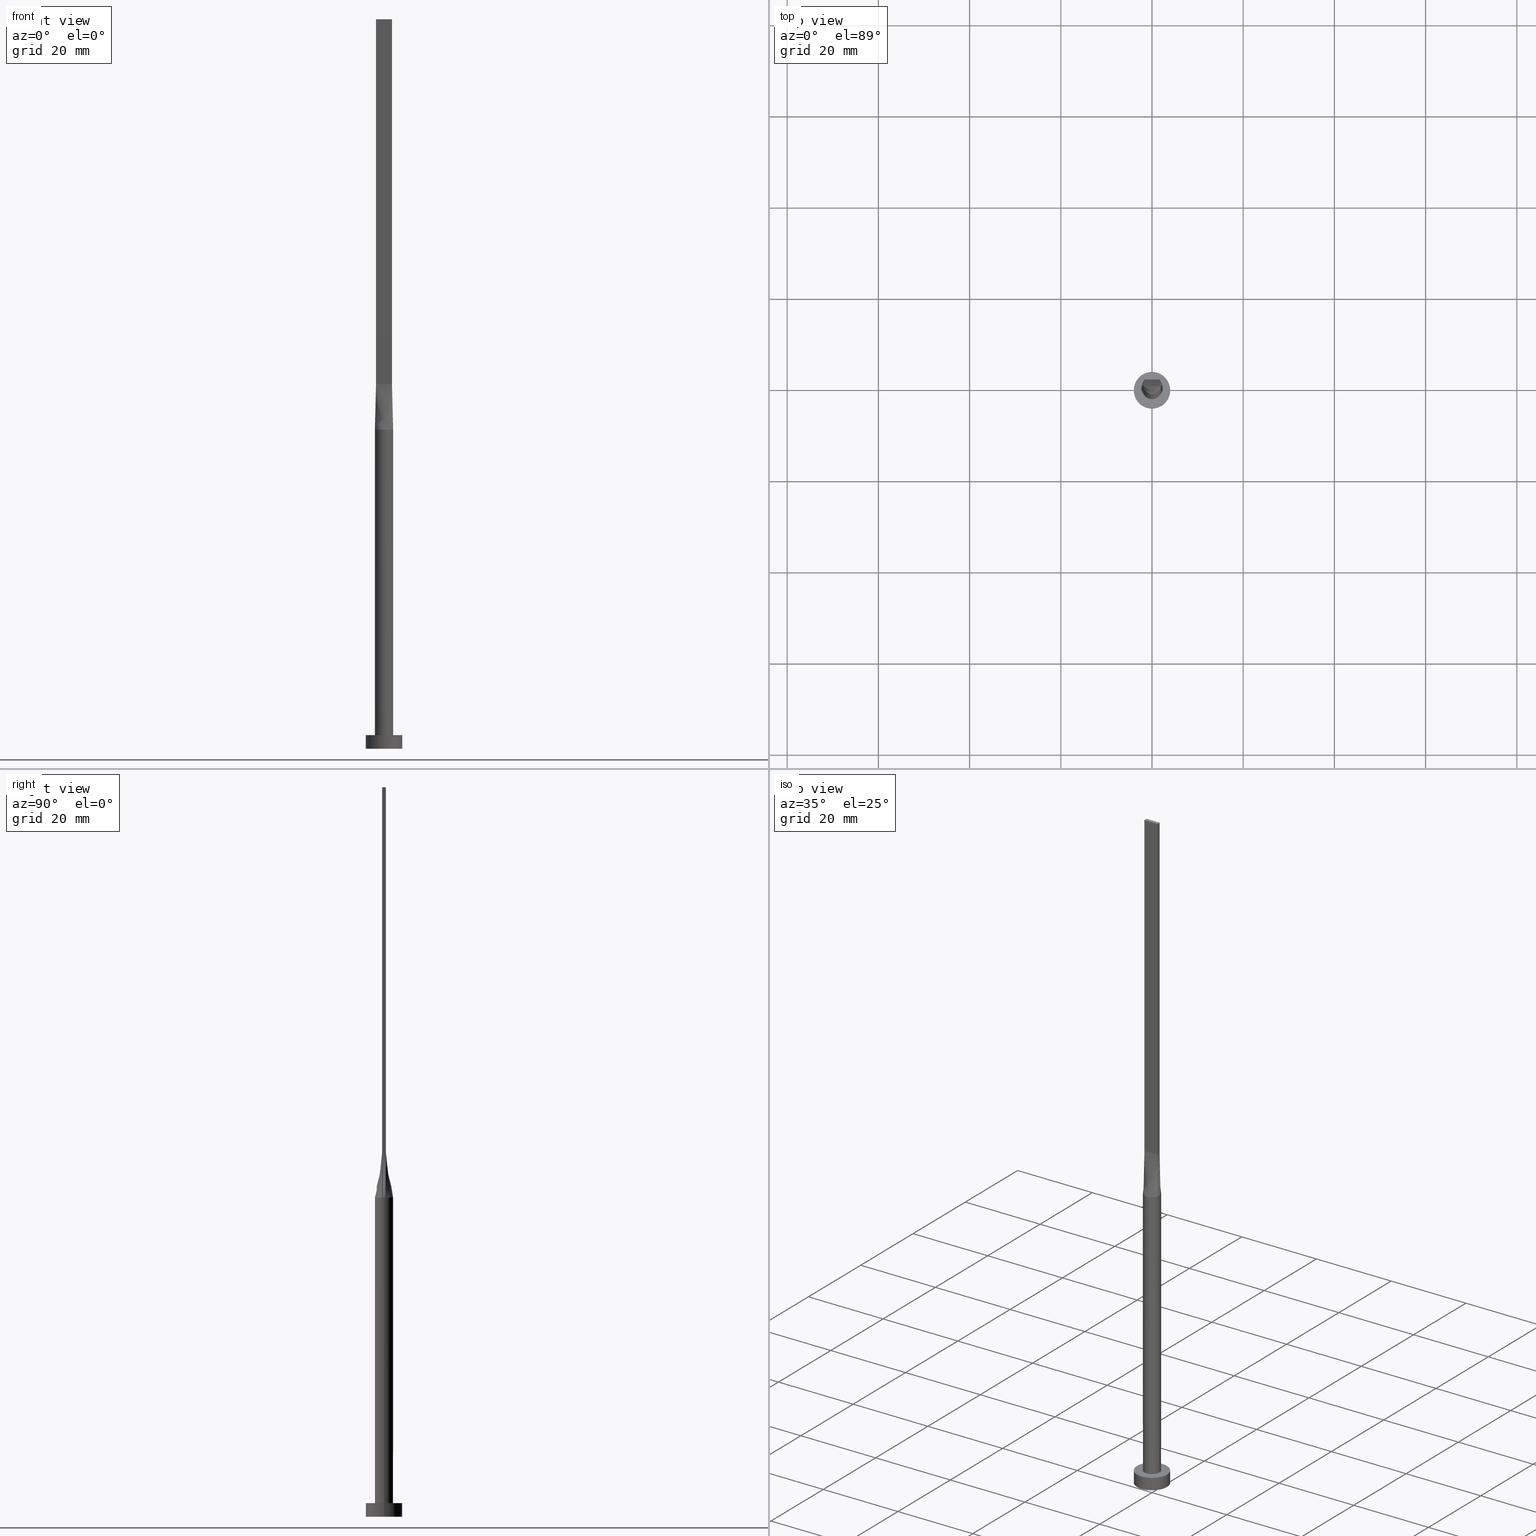
[diagram: canonical four-view strip — front | top / right | iso, engineering-drawing reading convention]
A machine part, canonical four-view strip (front | top / right | iso — engineering-drawing reading convention). The complete STEP part file that produces these views, byte-faithful:
ISO-10303-21;
HEADER;
FILE_DESCRIPTION (( 'STEP AP203' ),
    '1' );
FILE_NAME ('9717.STEP',
    '2026-02-12T09:06:50',
    ( '' ),
    ( '' ),
    'SwSTEP 2.0',
    'SolidWorks 2019',
    '' );
FILE_SCHEMA (( 'CONFIG_CONTROL_DESIGN' ));
ENDSEC;

DATA;
#1 = VECTOR ( 'NONE', #536, 1000.000000000000000 ) ;
#2 = DIRECTION ( 'NONE',  ( 1.000000000000000000, 0.000000000000000000, 0.000000000000000000 ) ) ;
#3 = ORIENTED_EDGE ( 'NONE', *, *, #293, .F. ) ;
#4 = CARTESIAN_POINT ( 'NONE',  ( 0.000000000000000000, 0.000000000000000000, 3.000000000000000000 ) ) ;
#5 = ADVANCED_FACE ( 'NONE', ( #320 ), #195, .T. ) ;
#6 = EDGE_CURVE ( 'NONE', #53, #36, #255, .T. ) ;
#7 = LINE ( 'NONE', #438, #499 ) ;
#8 = VECTOR ( 'NONE', #379, 1000.000000000000000 ) ;
#9 = LOCAL_TIME ( 10, 6, 50.00000000000000000, #35 ) ;
#10 = CARTESIAN_POINT ( 'NONE',  ( 1.166666666666665853, -0.3999999999999997446, 79.99999999999998579 ) ) ;
#11 = LINE ( 'NONE', #559, #203 ) ;
#12 = EDGE_CURVE ( 'NONE', #16, #36, #151, .T. ) ;
#13 = DIRECTION ( 'NONE',  ( -0.000000000000000000, -0.000000000000000000, -1.000000000000000000 ) ) ;
#14 = PLANE ( 'NONE',  #67 ) ;
#15 = AXIS2_PLACEMENT_3D ( 'NONE', #366, #91, #549 ) ;
#16 = VERTEX_POINT ( 'NONE', #97 ) ;
#17 = ORIENTED_EDGE ( 'NONE', *, *, #214, .F. ) ;
#18 = CARTESIAN_POINT ( 'NONE',  ( 0.5307032259479425029, 1.945168061822314165, 70.00000000000001421 ) ) ;
#19 = CARTESIAN_POINT ( 'NONE',  ( 0.1458333333333323989, 0.4000000000000004108, 80.00000000000000000 ) ) ;
#20 = DIRECTION ( 'NONE',  ( 0.000000000000000000, 1.000000000000000000, 0.000000000000000000 ) ) ;
#21 = CIRCLE ( 'NONE', #349, 2.000000000000000000 ) ;
#22 = LINE ( 'NONE', #464, #99 ) ;
#23 = VERTEX_POINT ( 'NONE', #363 ) ;
#24 = DIRECTION ( 'NONE',  ( 0.000000000000000000, 0.000000000000000000, 1.000000000000000000 ) ) ;
#25 = AXIS2_PLACEMENT_3D ( 'NONE', #4, #93, #181 ) ;
#26 = DIRECTION ( 'NONE',  ( -1.000000000000000000, -2.710505431213761085E-16, 0.000000000000000000 ) ) ;
#27 = PERSON_AND_ORGANIZATION_ROLE ( 'design_owner' ) ;
#28 = CARTESIAN_POINT ( 'NONE',  ( 1.982817607920046798, 0.3008345008579150770, 70.00000000000000000 ) ) ;
#29 = UNCERTAINTY_MEASURE_WITH_UNIT (LENGTH_MEASURE( 1.000000000000000082E-05 ), #194, 'distance_accuracy_value', 'NONE');
#30 = ADVANCED_FACE ( 'NONE', ( #491 ), #547, .F. ) ;
#31 = APPROVAL_DATE_TIME ( #259, #66 ) ;
#32 = ORIENTED_EDGE ( 'NONE', *, *, #110, .F. ) ;
#33 = DIRECTION ( 'NONE',  ( -0.01996751149463111413, 0.004564002627344219271, 0.9997902121768992290 ) ) ;
#34 = B_SPLINE_SURFACE_WITH_KNOTS ( 'NONE', 3, 1, ( 
 ( #305, #474 ),
 ( #159, #373 ),
 ( #155, #56 ),
 ( #238, #105 ),
 ( #560, #109 ),
 ( #412, #564 ),
 ( #198, #61 ),
 ( #18, #287 ),
 ( #461, #19 ),
 ( #552, #113 ),
 ( #334, #200 ),
 ( #377, #453 ),
 ( #511, #374 ),
 ( #457, #326 ),
 ( #58, #410 ),
 ( #288, #333 ),
 ( #458, #370 ),
 ( #283, #243 ) ),
 .UNSPECIFIED., .F., .F., .F.,
 ( 4, 2, 2, 2, 2, 2, 2, 2, 4 ),
 ( 2, 2 ),
 ( 0.000000000000000000, 0.1250000000000000000, 0.2500000000000000000, 0.3750000000000000000, 0.5000000000000000000, 0.6250000000000000000, 0.7500000000000000000, 0.8750000000000000000, 1.000000000000000000 ),
 ( 0.000000000000000000, 1.000000000000000000 ),
 .UNSPECIFIED. ) ;
#35 = COORDINATED_UNIVERSAL_TIME_OFFSET ( 1, 0, .AHEAD. ) ;
#36 = VERTEX_POINT ( 'NONE', #535 ) ;
#37 = CARTESIAN_POINT ( 'NONE',  ( -1.999367905308203630, -0.1504172504289575940, 70.00000000000000000 ) ) ;
#38 = EDGE_LOOP ( 'NONE', ( #343, #446, #391, #487 ) ) ;
#39 = DIRECTION ( 'NONE',  ( -1.000000000000000000, 0.000000000000000000, 0.000000000000000000 ) ) ;
#40 = EDGE_CURVE ( 'NONE', #183, #131, #268, .T. ) ;
#41 = FACE_OUTER_BOUND ( 'NONE', #572, .T. ) ;
#42 = CARTESIAN_POINT ( 'NONE',  ( -1.849858506571867123, 0.4228248015021412454, 75.00000000000001421 ) ) ;
#43 = CARTESIAN_POINT ( 'NONE',  ( 1.542259513637949109, -1.293837904363074331, 70.00000000000001421 ) ) ;
#44 = CARTESIAN_POINT ( 'NONE',  ( 1.209404336647714073, 1.609323485403446830, 70.00000000000001421 ) ) ;
#45 = CARTESIAN_POINT ( 'NONE',  ( 0.000000000000000000, 0.000000000000000000, 0.000000000000000000 ) ) ;
#46 = ORIENTED_EDGE ( 'NONE', *, *, #455, .F. ) ;
#47 = CARTESIAN_POINT ( 'NONE',  ( -1.749999999999999778, 0.4000000000000003553, 160.0000000000000000 ) ) ;
#48 = CARTESIAN_POINT ( 'NONE',  ( 1.669156890509896574, -1.119033439449083733, 70.00000000000001421 ) ) ;
#49 = CARTESIAN_POINT ( 'NONE',  ( 1.949877516600953875, 0.4456865912299994847, 70.00000000000000000 ) ) ;
#50 = DIRECTION ( 'NONE',  ( 0.000000000000000000, 0.000000000000000000, 1.000000000000000000 ) ) ;
#51 = DIRECTION ( 'NONE',  ( -2.710505431213761085E-16, 1.000000000000000000, 0.000000000000000000 ) ) ;
#52 = DIRECTION ( 'NONE',  ( -0.000000000000000000, -0.000000000000000000, -1.000000000000000000 ) ) ;
#53 = VERTEX_POINT ( 'NONE', #566 ) ;
#54 = AXIS2_PLACEMENT_3D ( 'NONE', #133, #229, #436 ) ;
#55 = EDGE_CURVE ( 'NONE', #550, #390, #409, .T. ) ;
#56 = CARTESIAN_POINT ( 'NONE',  ( 1.458333333333332371, 0.4000000000000003553, 79.99999999999998579 ) ) ;
#57 = CARTESIAN_POINT ( 'NONE',  ( -1.669156890509896796, 1.119033439449084399, 70.00000000000001421 ) ) ;
#58 = CARTESIAN_POINT ( 'NONE',  ( -1.669156890509896796, 1.119033439449084399, 70.00000000000001421 ) ) ;
#59 =( NAMED_UNIT ( * ) SI_UNIT ( $, .STERADIAN. ) SOLID_ANGLE_UNIT ( ) );
#60 = APPROVAL_STATUS ( 'not_yet_approved' ) ;
#61 = CARTESIAN_POINT ( 'NONE',  ( 0.5833333333333323711, 0.4000000000000004108, 79.99999999999998579 ) ) ;
#62 = DIRECTION ( 'NONE',  ( 1.000000000000000000, 0.000000000000000000, 0.000000000000000000 ) ) ;
#63 = ORIENTED_EDGE ( 'NONE', *, *, #116, .T. ) ;
#64 = ORIENTED_EDGE ( 'NONE', *, *, #153, .T. ) ;
#65 = CARTESIAN_POINT ( 'NONE',  ( -4.000000000000000000, 0.000000000000000000, 0.000000000000000000 ) ) ;
#66 = APPROVAL ( #251, 'NEUR�EN�' ) ;
#67 = AXIS2_PLACEMENT_3D ( 'NONE', #415, #20, #115 ) ;
#68 = DIRECTION ( 'NONE',  ( 0.000000000000000000, 0.000000000000000000, 1.000000000000000000 ) ) ;
#69 = ORIENTED_EDGE ( 'NONE', *, *, #6, .T. ) ;
#70 = EDGE_CURVE ( 'NONE', #505, #120, #495, .T. ) ;
#71 = CARTESIAN_POINT ( 'NONE',  ( -1.458333333333333703, -0.3999999999999996891, 79.99999999999998579 ) ) ;
#72 = ORIENTED_EDGE ( 'NONE', *, *, #378, .F. ) ;
#73 = CARTESIAN_POINT ( 'NONE',  ( -1.669156890509896796, -1.119033439449083733, 70.00000000000000000 ) ) ;
#74 = APPROVAL_DATE_TIME ( #126, #134 ) ;
#75 = EDGE_LOOP ( 'NONE', ( #420, #230, #69, #544, #271, #176 ) ) ;
#76 = EDGE_LOOP ( 'NONE', ( #63, #452, #307, #444 ) ) ;
#77 = CARTESIAN_POINT ( 'NONE',  ( 0.000000000000000000, 0.000000000000000000, 160.0000000000000000 ) ) ;
#78 = APPROVAL_PERSON_ORGANIZATION ( #389, #330, #191 ) ;
#79 = EDGE_CURVE ( 'NONE', #525, #95, #281, .T. ) ;
#80 = LINE ( 'NONE', #42, #325 ) ;
#81 = CALENDAR_DATE ( 2026, 12, 2 ) ;
#82 = CARTESIAN_POINT ( 'NONE',  ( -1.982817607920047243, -0.3008345008579154101, 70.00000000000000000 ) ) ;
#83 = AXIS2_PLACEMENT_3D ( 'NONE', #252, #26, #87 ) ;
#84 = ORIENTED_EDGE ( 'NONE', *, *, #441, .F. ) ;
#85 = CARTESIAN_POINT ( 'NONE',  ( 1.542259513637948443, 1.293837904363074998, 70.00000000000000000 ) ) ;
#86 = CARTESIAN_POINT ( 'NONE',  ( 0.000000000000000000, 0.000000000000000000, 3.000000000000000000 ) ) ;
#87 = DIRECTION ( 'NONE',  ( 2.710505431213761085E-16, -1.000000000000000000, 0.000000000000000000 ) ) ;
#88 = DIRECTION ( 'NONE',  ( 0.000000000000000000, 0.000000000000000000, 1.000000000000000000 ) ) ;
#89 = DIRECTION ( 'NONE',  ( 1.000000000000000000, 0.000000000000000000, -0.000000000000000000 ) ) ;
#90 = VERTEX_POINT ( 'NONE', #292 ) ;
#91 = DIRECTION ( 'NONE',  ( 0.000000000000000000, 0.000000000000000000, 1.000000000000000000 ) ) ;
#92 = ORIENTED_EDGE ( 'NONE', *, *, #114, .T. ) ;
#93 = DIRECTION ( 'NONE',  ( 0.000000000000000000, 0.000000000000000000, 1.000000000000000000 ) ) ;
#94 = EDGE_CURVE ( 'NONE', #297, #316, #21, .T. ) ;
#95 = VERTEX_POINT ( 'NONE', #507 ) ;
#96 = CARTESIAN_POINT ( 'NONE',  ( 1.020833333333332371, -0.3999999999999997446, 79.99999999999998579 ) ) ;
#97 = CARTESIAN_POINT ( 'NONE',  ( -1.999683952654101704, -4.787247324473225831E-16, 70.00000000000000000 ) ) ;
#98 = DIRECTION ( 'NONE',  ( -0.000000000000000000, -0.000000000000000000, -1.000000000000000000 ) ) ;
#99 = VECTOR ( 'NONE', #247, 1000.000000000000000 ) ;
#100 = EDGE_CURVE ( 'NONE', #173, #321, #22, .T. ) ;
#101 = CIRCLE ( 'NONE', #541, 2.000000000000000000 ) ;
#102 = CARTESIAN_POINT ( 'NONE',  ( 0.000000000000000000, 0.000000000000000000, 70.00000000000000000 ) ) ;
#103 = ORIENTED_EDGE ( 'NONE', *, *, #6, .F. ) ;
#104 = CIRCLE ( 'NONE', #520, 2.000000000000000000 ) ;
#105 = CARTESIAN_POINT ( 'NONE',  ( 1.166666666666665630, 0.4000000000000003553, 79.99999999999998579 ) ) ;
#106 = B_SPLINE_SURFACE_WITH_KNOTS ( 'NONE', 3, 1, ( 
 ( #448, #187 ),
 ( #207, #381 ),
 ( #382, #432 ),
 ( #37, #426 ),
 ( #82, #568 ),
 ( #519, #311 ) ),
 .UNSPECIFIED., .F., .F., .F.,
 ( 4, 2, 4 ),
 ( 2, 2 ),
 ( 0.000000000000000000, 0.5000000000000000000, 1.000000000000000000 ),
 ( 0.000000000000000000, 1.000000000000000000 ),
 .UNSPECIFIED. ) ;
#107 = CARTESIAN_POINT ( 'NONE',  ( -2.000000000000000000, 0.000000000000000000, 70.00000000000000000 ) ) ;
#108 = CALENDAR_DATE ( 2026, 12, 2 ) ;
#109 = CARTESIAN_POINT ( 'NONE',  ( 1.020833333333332371, 0.4000000000000004108, 79.99999999999998579 ) ) ;
#110 = EDGE_CURVE ( 'NONE', #525, #173, #423, .T. ) ;
#111 = CARTESIAN_POINT ( 'NONE',  ( 0.000000000000000000, 0.000000000000000000, 70.00000000000000000 ) ) ;
#112 = APPLICATION_CONTEXT ( 'configuration controlled 3d designs of mechanical parts and assemblies' ) ;
#113 = CARTESIAN_POINT ( 'NONE',  ( -0.1458333333333341753, 0.4000000000000004108, 79.99999999999998579 ) ) ;
#114 = EDGE_CURVE ( 'NONE', #321, #90, #404, .T. ) ;
#115 = DIRECTION ( 'NONE',  ( 0.000000000000000000, -0.000000000000000000, 1.000000000000000000 ) ) ;
#116 = EDGE_CURVE ( 'NONE', #505, #23, #516, .T. ) ;
#117 = CARTESIAN_POINT ( 'NONE',  ( -1.750000000000000000, -0.3999999999999996891, 80.00000000000000000 ) ) ;
#118 = AXIS2_PLACEMENT_3D ( 'NONE', #45, #245, #264 ) ;
#119 = COORDINATED_UNIVERSAL_TIME_OFFSET ( 1, 0, .AHEAD. ) ;
#120 = VERTEX_POINT ( 'NONE', #493 ) ;
#121 = CARTESIAN_POINT ( 'NONE',  ( -1.913513237607142425, -0.6040411209768705714, 70.00000000000001421 ) ) ;
#122 = PERSON_AND_ORGANIZATION ( #416, #148 ) ;
#123 = ORIENTED_EDGE ( 'NONE', *, *, #345, .T. ) ;
#124 = CARTESIAN_POINT ( 'NONE',  ( -0.5833333333333344806, -0.3999999999999997446, 79.99999999999998579 ) ) ;
#125 = FACE_OUTER_BOUND ( 'NONE', #76, .T. ) ;
#126 = DATE_AND_TIME ( #81, #397 ) ;
#127 = ORIENTED_EDGE ( 'NONE', *, *, #161, .T. ) ;
#128 = DIRECTION ( 'NONE',  ( 0.000000000000000000, 0.000000000000000000, 1.000000000000000000 ) ) ;
#129 = B_SPLINE_SURFACE_WITH_KNOTS ( 'NONE', 3, 1, ( 
 ( #210, #117 ),
 ( #121, #339 ),
 ( #257, #71 ),
 ( #73, #387 ),
 ( #260, #168 ),
 ( #573, #341 ),
 ( #522, #124 ),
 ( #144, #357 ),
 ( #352, #542 ),
 ( #142, #486 ),
 ( #534, #440 ),
 ( #234, #184 ),
 ( #398, #361 ),
 ( #43, #96 ),
 ( #48, #10 ),
 ( #226, #135 ),
 ( #407, #186 ),
 ( #317, #442 ) ),
 .UNSPECIFIED., .F., .F., .F.,
 ( 4, 2, 2, 2, 2, 2, 2, 2, 4 ),
 ( 2, 2 ),
 ( 0.000000000000000000, 0.1250000000000000000, 0.2500000000000000000, 0.3750000000000000000, 0.5000000000000000000, 0.6250000000000000000, 0.7500000000000000000, 0.8750000000000000000, 1.000000000000000000 ),
 ( 0.000000000000000000, 1.000000000000000000 ),
 .UNSPECIFIED. ) ;
#130 = CARTESIAN_POINT ( 'NONE',  ( 4.000000000000000000, 4.898587196589412829E-16, 0.000000000000000000 ) ) ;
#131 = VERTEX_POINT ( 'NONE', #274 ) ;
#132 = LINE ( 'NONE', #392, #178 ) ;
#133 = CARTESIAN_POINT ( 'NONE',  ( 0.000000000000000000, 0.000000000000000000, 70.00000000000000000 ) ) ;
#134 = APPROVAL ( #209, 'NEUR�EN�' ) ;
#135 = CARTESIAN_POINT ( 'NONE',  ( 1.458333333333333037, -0.3999999999999997446, 79.99999999999998579 ) ) ;
#136 = CARTESIAN_POINT ( 'NONE',  ( -1.750000000000000000, -0.3999999999999996891, 160.0000000000000000 ) ) ;
#137 = LINE ( 'NONE', #393, #569 ) ;
#138 = ADVANCED_FACE ( 'NONE', ( #236 ), #106, .T. ) ;
#139 = DIRECTION ( 'NONE',  ( 0.000000000000000000, 0.000000000000000000, 1.000000000000000000 ) ) ;
#140 = ORIENTED_EDGE ( 'NONE', *, *, #399, .F. ) ;
#141 = CC_DESIGN_APPROVAL ( #330, ( #275 ) ) ;
#142 = CARTESIAN_POINT ( 'NONE',  ( 0.2657394870669759768, -2.000000000000000444, 70.00000000000000000 ) ) ;
#143 = APPLICATION_CONTEXT ( 'configuration controlled 3d designs of mechanical parts and assemblies' ) ;
#144 = CARTESIAN_POINT ( 'NONE',  ( -0.5307032259479425029, -1.945168061822315275, 70.00000000000001421 ) ) ;
#145 = ADVANCED_FACE ( 'NONE', ( #249 ), #482, .F. ) ;
#146 = ORIENTED_EDGE ( 'NONE', *, *, #345, .F. ) ;
#147 = ORIENTED_EDGE ( 'NONE', *, *, #562, .F. ) ;
#148 = ORGANIZATION ( 'NEUR�EN�', 'NEUR�EN�', '' ) ;
#149 = CARTESIAN_POINT ( 'NONE',  ( 1.849858506571867123, 0.4228248015021409678, 75.00000000000001421 ) ) ;
#150 = CARTESIAN_POINT ( 'NONE',  ( -1.209404336647713851, 1.609323485403446830, 70.00000000000001421 ) ) ;
#151 = LINE ( 'NONE', #107, #514 ) ;
#152 = VECTOR ( 'NONE', #166, 1000.000000000000227 ) ;
#153 = EDGE_CURVE ( 'NONE', #550, #518, #394, .T. ) ;
#154 = ORIENTED_EDGE ( 'NONE', *, *, #282, .F. ) ;
#155 = CARTESIAN_POINT ( 'NONE',  ( 1.854458107241759190, 0.7741483657718509770, 70.00000000000000000 ) ) ;
#156 = CARTESIAN_POINT ( 'NONE',  ( -1.949896596863728293, 0.4456908869437610776, 70.00000000000000000 ) ) ;
#157 = LINE ( 'NONE', #500, #228 ) ;
#158 = EDGE_LOOP ( 'NONE', ( #538, #450, #497, #429 ) ) ;
#159 = CARTESIAN_POINT ( 'NONE',  ( 1.913513237607142647, 0.6040411209768705714, 70.00000000000001421 ) ) ;
#160 = ADVANCED_FACE ( 'NONE', ( #41 ), #501, .T. ) ;
#161 = EDGE_CURVE ( 'NONE', #95, #120, #219, .T. ) ;
#162 = CALENDAR_DATE ( 2026, 12, 2 ) ;
#163 = CARTESIAN_POINT ( 'NONE',  ( 1.949717013143734690, 0.4456496030042815248, 70.00000000000000000 ) ) ;
#164 = APPLICATION_PROTOCOL_DEFINITION ( 'international standard', 'config_control_design', 1994, #143 ) ;
#165 = ORIENTED_EDGE ( 'NONE', *, *, #441, .T. ) ;
#166 = DIRECTION ( 'NONE',  ( -0.01996751149463111413, -0.004564002627344279119, -0.9997902121768992290 ) ) ;
#167 = PERSON_AND_ORGANIZATION_ROLE ( 'design_supplier' ) ;
#168 = CARTESIAN_POINT ( 'NONE',  ( -1.020833333333334147, -0.3999999999999997446, 79.99999999999998579 ) ) ;
#169 = LINE ( 'NONE', #353, #563 ) ;
#170 = DATE_TIME_ROLE ( 'classification_date' ) ;
#171 = CARTESIAN_POINT ( 'NONE',  ( 1.749999999999999778, 0.4000000000000003553, 80.00000000000000000 ) ) ;
#172 = LINE ( 'NONE', #396, #1 ) ;
#173 = VERTEX_POINT ( 'NONE', #383 ) ;
#174 = CARTESIAN_POINT ( 'NONE',  ( 1.749999999999999778, 0.4000000000000003553, 80.00000000000000000 ) ) ;
#175 = DIRECTION ( 'NONE',  ( 1.000000000000000000, 0.000000000000000000, 0.000000000000000000 ) ) ;
#176 = ORIENTED_EDGE ( 'NONE', *, *, #116, .F. ) ;
#177 = PLANE ( 'NONE',  #451 ) ;
#178 = VECTOR ( 'NONE', #33, 1000.000000000000227 ) ;
#179 = ORIENTED_EDGE ( 'NONE', *, *, #110, .T. ) ;
#180 = FACE_OUTER_BOUND ( 'NONE', #276, .T. ) ;
#181 = DIRECTION ( 'NONE',  ( 1.000000000000000000, 0.000000000000000000, 0.000000000000000000 ) ) ;
#182 = ORIENTED_EDGE ( 'NONE', *, *, #214, .T. ) ;
#183 = VERTEX_POINT ( 'NONE', #344 ) ;
#184 = CARTESIAN_POINT ( 'NONE',  ( 0.5833333333333321491, -0.3999999999999997446, 79.99999999999998579 ) ) ;
#185 = ORIENTED_EDGE ( 'NONE', *, *, #12, .T. ) ;
#186 = CARTESIAN_POINT ( 'NONE',  ( 1.604166666666666519, -0.3999999999999997446, 79.99999999999998579 ) ) ;
#187 = CARTESIAN_POINT ( 'NONE',  ( -1.749999999999999778, 0.4000000000000003553, 80.00000000000000000 ) ) ;
#188 = DIRECTION ( 'NONE',  ( -0.000000000000000000, -0.000000000000000000, -1.000000000000000000 ) ) ;
#189 = CARTESIAN_POINT ( 'NONE',  ( 0.000000000000000000, 0.000000000000000000, 3.000000000000000000 ) ) ;
#190 = EDGE_LOOP ( 'NONE', ( #332, #182, #72, #266 ) ) ;
#191 = APPROVAL_ROLE ( '' ) ;
#192 = CIRCLE ( 'NONE', #118, 4.000000000000000000 ) ;
#193 = CARTESIAN_POINT ( 'NONE',  ( 1.750000000000000000, -0.3999999999999996891, 160.0000000000000000 ) ) ;
#194 =( LENGTH_UNIT ( ) NAMED_UNIT ( * ) SI_UNIT ( .MILLI., .METRE. ) );
#195 = CYLINDRICAL_SURFACE ( 'NONE', #503, 2.000000000000000000 ) ;
#196 = AXIS2_PLACEMENT_3D ( 'NONE', #445, #50, #89 ) ;
#197 = ADVANCED_FACE ( 'NONE', ( #471 ), #350, .T. ) ;
#198 = CARTESIAN_POINT ( 'NONE',  ( 1.002818635501954603, 1.749193953526918088, 70.00000000000000000 ) ) ;
#199 = EDGE_CURVE ( 'NONE', #131, #297, #308, .T. ) ;
#200 = CARTESIAN_POINT ( 'NONE',  ( -0.2916666666666674623, 0.4000000000000004108, 79.99999999999998579 ) ) ;
#201 = VECTOR ( 'NONE', #322, 1000.000000000000227 ) ;
#202 = CARTESIAN_POINT ( 'NONE',  ( 1.750000000000000000, -0.3999999999999996891, 160.0000000000000000 ) ) ;
#203 = VECTOR ( 'NONE', #414, 1000.000000000000000 ) ;
#204 = ORIENTED_EDGE ( 'NONE', *, *, #55, .T. ) ;
#205 = VECTOR ( 'NONE', #98, 1000.000000000000000 ) ;
#206 = CYLINDRICAL_SURFACE ( 'NONE', #431, 4.000000000000000000 ) ;
#207 = CARTESIAN_POINT ( 'NONE',  ( -1.982817607920046798, 0.3008345008579159097, 70.00000000000000000 ) ) ;
#208 = CARTESIAN_POINT ( 'NONE',  ( 1.749999999999999778, 0.1333333333333336645, 79.99999999999998579 ) ) ;
#209 = APPROVAL_STATUS ( 'not_yet_approved' ) ;
#210 = CARTESIAN_POINT ( 'NONE',  ( -1.949717013143734690, -0.4456496030042821355, 70.00000000000000000 ) ) ;
#211 = ADVANCED_BREP_SHAPE_REPRESENTATION ( '9717', ( #328, #570 ), #331 ) ;
#212 = PERSON_AND_ORGANIZATION ( #416, #148 ) ;
#213 = EDGE_LOOP ( 'NONE', ( #127, #147, #32, #428 ) ) ;
#214 = EDGE_CURVE ( 'NONE', #316, #95, #132, .T. ) ;
#215 = CIRCLE ( 'NONE', #54, 2.000000000000000000 ) ;
#216 = CARTESIAN_POINT ( 'NONE',  ( 1.999683952654101260, 4.637163118916083254E-16, 70.00000000000000000 ) ) ;
#217 = DATE_AND_TIME ( #162, #9 ) ;
#218 = AXIS2_PLACEMENT_3D ( 'NONE', #77, #128, #435 ) ;
#219 = LINE ( 'NONE', #171, #371 ) ;
#220 = CARTESIAN_POINT ( 'NONE',  ( -0.5307032259479420588, 1.945168061822314609, 70.00000000000001421 ) ) ;
#221 = DIRECTION ( 'NONE',  ( -0.000000000000000000, -0.000000000000000000, -1.000000000000000000 ) ) ;
#222 = CARTESIAN_POINT ( 'NONE',  ( 1.750000000000000000, -0.3999999999999996891, 80.00000000000000000 ) ) ;
#223 = EDGE_CURVE ( 'NONE', #183, #525, #467, .T. ) ;
#224 = EDGE_LOOP ( 'NONE', ( #204, #244 ) ) ;
#225 = DIRECTION ( 'NONE',  ( 0.000000000000000000, 0.000000000000000000, 1.000000000000000000 ) ) ;
#226 = CARTESIAN_POINT ( 'NONE',  ( 1.854458107241758746, -0.7741483657718503109, 70.00000000000001421 ) ) ;
#227 = VERTEX_POINT ( 'NONE', #216 ) ;
#228 = VECTOR ( 'NONE', #188, 1000.000000000000000 ) ;
#229 = DIRECTION ( 'NONE',  ( 0.000000000000000000, 0.000000000000000000, 1.000000000000000000 ) ) ;
#230 = ORIENTED_EDGE ( 'NONE', *, *, #561, .T. ) ;
#231 = DIRECTION ( 'NONE',  ( 2.710505431213761085E-16, 1.000000000000000000, 0.000000000000000000 ) ) ;
#232 = LINE ( 'NONE', #47, #237 ) ;
#233 = ADVANCED_FACE ( 'NONE', ( #513 ), #129, .T. ) ;
#234 = CARTESIAN_POINT ( 'NONE',  ( 1.002818635501955047, -1.749193953526917866, 70.00000000000001421 ) ) ;
#235 = CARTESIAN_POINT ( 'NONE',  ( 1.913513237607142647, 0.6040411209768705714, 70.00000000000001421 ) ) ;
#236 = FACE_OUTER_BOUND ( 'NONE', #540, .T. ) ;
#237 = VECTOR ( 'NONE', #437, 1000.000000000000000 ) ;
#238 = CARTESIAN_POINT ( 'NONE',  ( 1.669156890509896352, 1.119033439449084177, 70.00000000000000000 ) ) ;
#239 = ADVANCED_FACE ( 'NONE', ( #315 ), #546, .F. ) ;
#240 = FACE_OUTER_BOUND ( 'NONE', #460, .T. ) ;
#241 = CARTESIAN_POINT ( 'NONE',  ( -1.913513237607142647, 0.6040411209768712375, 70.00000000000001421 ) ) ;
#242 = ADVANCED_FACE ( 'NONE', ( #402, #263 ), #273, .T. ) ;
#243 = CARTESIAN_POINT ( 'NONE',  ( -1.749999999999999778, 0.4000000000000003553, 80.00000000000000000 ) ) ;
#244 = ORIENTED_EDGE ( 'NONE', *, *, #399, .T. ) ;
#245 = DIRECTION ( 'NONE',  ( 0.000000000000000000, 0.000000000000000000, 1.000000000000000000 ) ) ;
#246 = AXIS2_PLACEMENT_3D ( 'NONE', #86, #24, #312 ) ;
#247 = DIRECTION ( 'NONE',  ( -1.000000000000000000, 0.000000000000000000, 0.000000000000000000 ) ) ;
#248 = DIRECTION ( 'NONE',  ( 0.000000000000000000, 0.000000000000000000, 1.000000000000000000 ) ) ;
#249 = FACE_OUTER_BOUND ( 'NONE', #213, .T. ) ;
#250 = PRODUCT_DEFINITION ( 'NEZN�M�', '', #504, #384 ) ;
#251 = APPROVAL_STATUS ( 'not_yet_approved' ) ;
#252 = CARTESIAN_POINT ( 'NONE',  ( 1.750000000000000000, -0.3999999999999996891, 160.0000000000000000 ) ) ;
#253 = CALENDAR_DATE ( 2026, 12, 2 ) ;
#254 = ORIENTED_EDGE ( 'NONE', *, *, #561, .F. ) ;
#255 = CIRCLE ( 'NONE', #376, 2.000000000000000000 ) ;
#256 = APPROVAL_PERSON_ORGANIZATION ( #469, #66, #475 ) ;
#257 = CARTESIAN_POINT ( 'NONE',  ( -1.854458107241759190, -0.7741483657718508660, 70.00000000000000000 ) ) ;
#258 = DIRECTION ( 'NONE',  ( -2.710505431213761085E-16, -1.000000000000000000, 0.000000000000000000 ) ) ;
#259 = DATE_AND_TIME ( #524, #338 ) ;
#260 = CARTESIAN_POINT ( 'NONE',  ( -1.542259513637948887, -1.293837904363074331, 70.00000000000001421 ) ) ;
#261 = FACE_OUTER_BOUND ( 'NONE', #380, .T. ) ;
#262 = ORIENTED_EDGE ( 'NONE', *, *, #304, .T. ) ;
#263 = FACE_OUTER_BOUND ( 'NONE', #224, .T. ) ;
#264 = DIRECTION ( 'NONE',  ( 1.000000000000000000, 0.000000000000000000, 0.000000000000000000 ) ) ;
#265 = DIRECTION ( 'NONE',  ( 1.000000000000000000, -2.710505431213761085E-16, 0.000000000000000000 ) ) ;
#266 = ORIENTED_EDGE ( 'NONE', *, *, #199, .T. ) ;
#267 = CC_DESIGN_APPROVAL ( #66, ( #504 ) ) ;
#268 = LINE ( 'NONE', #136, #8 ) ;
#269 = ORIENTED_EDGE ( 'NONE', *, *, #282, .T. ) ;
#270 = FACE_OUTER_BOUND ( 'NONE', #405, .T. ) ;
#271 = ORIENTED_EDGE ( 'NONE', *, *, #329, .F. ) ;
#272 = EDGE_LOOP ( 'NONE', ( #3, #103 ) ) ;
#273 = PLANE ( 'NONE',  #196 ) ;
#274 = CARTESIAN_POINT ( 'NONE',  ( -1.750000000000000000, -0.3999999999999996891, 80.00000000000000000 ) ) ;
#275 = SECURITY_CLASSIFICATION ( '', '', #521 ) ;
#276 = EDGE_LOOP ( 'NONE', ( #140, #262, #319, #470 ) ) ;
#277 = PRODUCT_RELATED_PRODUCT_CATEGORY ( 'detail', '', ( #300 ) ) ;
#278 = ORIENTED_EDGE ( 'NONE', *, *, #94, .F. ) ;
#279 = ORIENTED_EDGE ( 'NONE', *, *, #314, .F. ) ;
#280 = DATE_AND_TIME ( #108, #419 ) ;
#281 = LINE ( 'NONE', #193, #529 ) ;
#282 = EDGE_CURVE ( 'NONE', #321, #183, #232, .T. ) ;
#283 = CARTESIAN_POINT ( 'NONE',  ( -1.949717013143734468, 0.4456496030042821910, 70.00000000000000000 ) ) ;
#284 = ADVANCED_FACE ( 'NONE', ( #270 ), #177, .F. ) ;
#285 = ORIENTED_EDGE ( 'NONE', *, *, #455, .T. ) ;
#286 = APPROVAL_DATE_TIME ( #280, #330 ) ;
#287 = CARTESIAN_POINT ( 'NONE',  ( 0.2916666666666656860, 0.4000000000000004108, 79.99999999999998579 ) ) ;
#288 = CARTESIAN_POINT ( 'NONE',  ( -1.854458107241758746, 0.7741483657718513101, 70.00000000000001421 ) ) ;
#289 = ORIENTED_EDGE ( 'NONE', *, *, #298, .T. ) ;
#290 = CARTESIAN_POINT ( 'NONE',  ( 1.949877516600953875, 0.4456865912299994847, 70.00000000000000000 ) ) ;
#291 = CYLINDRICAL_SURFACE ( 'NONE', #515, 2.000000000000000000 ) ;
#292 = CARTESIAN_POINT ( 'NONE',  ( -1.749999999999999778, 0.4000000000000003553, 80.00000000000000000 ) ) ;
#293 = EDGE_CURVE ( 'NONE', #36, #53, #532, .T. ) ;
#294 = CC_DESIGN_SECURITY_CLASSIFICATION ( #275, ( #504 ) ) ;
#295 = CARTESIAN_POINT ( 'NONE',  ( 1.949717013143734690, -0.4456496030042819689, 70.00000000000000000 ) ) ;
#296 = DATE_TIME_ROLE ( 'creation_date' ) ;
#297 = VERTEX_POINT ( 'NONE', #354 ) ;
#298 = EDGE_CURVE ( 'NONE', #227, #505, #104, .T. ) ;
#299 = DIRECTION ( 'NONE',  ( 1.000000000000000000, 0.000000000000000000, 0.000000000000000000 ) ) ;
#300 = PRODUCT ( '9717', '9717', '', ( #340 ) ) ;
#301 = CARTESIAN_POINT ( 'NONE',  ( 0.000000000000000000, 0.000000000000000000, 0.000000000000000000 ) ) ;
#302 = ORIENTED_EDGE ( 'NONE', *, *, #223, .T. ) ;
#303 = CARTESIAN_POINT ( 'NONE',  ( 1.982817607920046798, -0.3008345008579155211, 70.00000000000000000 ) ) ;
#304 = EDGE_CURVE ( 'NONE', #390, #476, #7, .T. ) ;
#305 = CARTESIAN_POINT ( 'NONE',  ( 1.949717013143734468, 0.4456496030042822465, 70.00000000000000000 ) ) ;
#306 = COORDINATED_UNIVERSAL_TIME_OFFSET ( 1, 0, .AHEAD. ) ;
#307 = ORIENTED_EDGE ( 'NONE', *, *, #309, .F. ) ;
#308 = LINE ( 'NONE', #422, #152 ) ;
#309 = EDGE_CURVE ( 'NONE', #120, #90, #172, .T. ) ;
#310 = DIRECTION ( 'NONE',  ( -0.000000000000000000, -0.000000000000000000, -1.000000000000000000 ) ) ;
#311 = CARTESIAN_POINT ( 'NONE',  ( -1.750000000000000000, -0.3999999999999996891, 80.00000000000000000 ) ) ;
#312 = DIRECTION ( 'NONE',  ( 1.000000000000000000, 0.000000000000000000, 0.000000000000000000 ) ) ;
#313 = DIRECTION ( 'NONE',  ( 0.000000000000000000, -1.000000000000000000, 0.000000000000000000 ) ) ;
#314 = EDGE_CURVE ( 'NONE', #23, #90, #80, .T. ) ;
#315 = FACE_OUTER_BOUND ( 'NONE', #158, .T. ) ;
#316 = VERTEX_POINT ( 'NONE', #348 ) ;
#317 = CARTESIAN_POINT ( 'NONE',  ( 1.949717013143734690, -0.4456496030042815248, 70.00000000000000000 ) ) ;
#318 = PRODUCT_DEFINITION_SHAPE ( 'NONE', 'NONE',  #250 ) ;
#319 = ORIENTED_EDGE ( 'NONE', *, *, #365, .T. ) ;
#320 = FACE_OUTER_BOUND ( 'NONE', #75, .T. ) ;
#321 = VERTEX_POINT ( 'NONE', #533 ) ;
#322 = DIRECTION ( 'NONE',  ( -0.01996751149463113842, -0.004564002627344153351, 0.9997902121768992290 ) ) ;
#323 = DIRECTION ( 'NONE',  ( -0.000000000000000000, -0.000000000000000000, -1.000000000000000000 ) ) ;
#324 = CARTESIAN_POINT ( 'NONE',  ( -1.542259513637947999, 1.293837904363075442, 70.00000000000001421 ) ) ;
#325 = VECTOR ( 'NONE', #528, 1000.000000000000227 ) ;
#326 = CARTESIAN_POINT ( 'NONE',  ( -1.020833333333333925, 0.4000000000000004108, 79.99999999999998579 ) ) ;
#327 = CARTESIAN_POINT ( 'NONE',  ( -1.854458107241758746, 0.7741483657718513101, 70.00000000000001421 ) ) ;
#328 = MANIFOLD_SOLID_BREP ( 'P�idat vysunut�m5', #359 ) ;
#329 = EDGE_CURVE ( 'NONE', #23, #16, #468, .T. ) ;
#330 = APPROVAL ( #60, 'NEUR�EN�' ) ;
#331 =( GEOMETRIC_REPRESENTATION_CONTEXT ( 3 ) GLOBAL_UNCERTAINTY_ASSIGNED_CONTEXT ( ( #29 ) ) GLOBAL_UNIT_ASSIGNED_CONTEXT ( ( #194, #502, #59 ) ) REPRESENTATION_CONTEXT ( 'NONE', 'WORKASPACE' ) );
#332 = ORIENTED_EDGE ( 'NONE', *, *, #94, .T. ) ;
#333 = CARTESIAN_POINT ( 'NONE',  ( -1.458333333333333703, 0.4000000000000004108, 79.99999999999998579 ) ) ;
#334 = CARTESIAN_POINT ( 'NONE',  ( -0.5307032259479420588, 1.945168061822314609, 70.00000000000001421 ) ) ;
#335 = APPLICATION_PROTOCOL_DEFINITION ( 'international standard', 'config_control_design', 1994, #112 ) ;
#336 = DIRECTION ( 'NONE',  ( -2.710505431213761085E-16, 1.000000000000000000, -0.000000000000000000 ) ) ;
#337 = APPROVAL_ROLE ( '' ) ;
#338 = LOCAL_TIME ( 10, 6, 50.00000000000000000, #425 ) ;
#339 = CARTESIAN_POINT ( 'NONE',  ( -1.604166666666666963, -0.3999999999999996891, 79.99999999999998579 ) ) ;
#340 = MECHANICAL_CONTEXT ( 'NONE', #112, 'mechanical' ) ;
#341 = CARTESIAN_POINT ( 'NONE',  ( -0.7291666666666676289, -0.3999999999999997446, 79.99999999999998579 ) ) ;
#342 = CARTESIAN_POINT ( 'NONE',  ( 4.000000000000000000, 4.898587196589412829E-16, 3.000000000000000000 ) ) ;
#343 = ORIENTED_EDGE ( 'NONE', *, *, #378, .T. ) ;
#344 = CARTESIAN_POINT ( 'NONE',  ( -1.750000000000000000, -0.3999999999999996891, 160.0000000000000000 ) ) ;
#345 = EDGE_CURVE ( 'NONE', #16, #297, #215, .T. ) ;
#346 = ORIENTED_EDGE ( 'NONE', *, *, #406, .F. ) ;
#347 = CC_DESIGN_PERSON_AND_ORGANIZATION_ASSIGNMENT ( #571, #167, ( #504 ) ) ;
#348 = CARTESIAN_POINT ( 'NONE',  ( 1.949907982895221048, -0.4456935569447296186, 70.00000000000000000 ) ) ;
#349 = AXIS2_PLACEMENT_3D ( 'NONE', #375, #68, #62 ) ;
#350 = PLANE ( 'NONE',  #218 ) ;
#351 = DIRECTION ( 'NONE',  ( 1.000000000000000000, 0.000000000000000000, 0.000000000000000000 ) ) ;
#352 = CARTESIAN_POINT ( 'NONE',  ( -0.2657394870669760878, -2.000000000000000000, 70.00000000000000000 ) ) ;
#353 = CARTESIAN_POINT ( 'NONE',  ( -1.749999999999999778, 0.4000000000000003553, 80.00000000000000000 ) ) ;
#354 = CARTESIAN_POINT ( 'NONE',  ( -1.949888833174281633, -0.4456892479726881628, 70.00000000000000000 ) ) ;
#355 = ORIENTED_EDGE ( 'NONE', *, *, #406, .T. ) ;
#356 = CARTESIAN_POINT ( 'NONE',  ( 0.5307032259479425029, 1.945168061822314165, 70.00000000000001421 ) ) ;
#357 = CARTESIAN_POINT ( 'NONE',  ( -0.2916666666666679619, -0.3999999999999997446, 79.99999999999998579 ) ) ;
#358 = CARTESIAN_POINT ( 'NONE',  ( 1.750000000000000000, -0.3999999999999996891, 160.0000000000000000 ) ) ;
#359 = CLOSED_SHELL ( 'NONE', ( #5, #485, #418, #242, #30, #556, #233, #160, #138, #498, #239, #284, #508, #145, #197 ) ) ;
#360 = ORIENTED_EDGE ( 'NONE', *, *, #55, .F. ) ;
#361 = CARTESIAN_POINT ( 'NONE',  ( 0.7291666666666656305, -0.3999999999999997446, 79.99999999999998579 ) ) ;
#362 = CARTESIAN_POINT ( 'NONE',  ( 1.669156890509896352, 1.119033439449084177, 70.00000000000000000 ) ) ;
#363 = CARTESIAN_POINT ( 'NONE',  ( -1.949896596863728293, 0.4456908869437610776, 70.00000000000000000 ) ) ;
#364 = AXIS2_PLACEMENT_3D ( 'NONE', #580, #225, #2 ) ;
#365 = EDGE_CURVE ( 'NONE', #476, #518, #477, .T. ) ;
#366 = CARTESIAN_POINT ( 'NONE',  ( 0.000000000000000000, 0.000000000000000000, 0.000000000000000000 ) ) ;
#367 = DIRECTION ( 'NONE',  ( 1.000000000000000000, 0.000000000000000000, 0.000000000000000000 ) ) ;
#368 = ORIENTED_EDGE ( 'NONE', *, *, #293, .T. ) ;
#369 = DIRECTION ( 'NONE',  ( -0.000000000000000000, -0.000000000000000000, -1.000000000000000000 ) ) ;
#370 = CARTESIAN_POINT ( 'NONE',  ( -1.604166666666666741, 0.4000000000000004108, 79.99999999999998579 ) ) ;
#371 = VECTOR ( 'NONE', #336, 1000.000000000000000 ) ;
#372 = DIRECTION ( 'NONE',  ( -1.000000000000000000, 0.000000000000000000, 0.000000000000000000 ) ) ;
#373 = CARTESIAN_POINT ( 'NONE',  ( 1.604166666666665630, 0.4000000000000003553, 79.99999999999998579 ) ) ;
#374 = CARTESIAN_POINT ( 'NONE',  ( -0.7291666666666672958, 0.4000000000000004108, 79.99999999999998579 ) ) ;
#375 = CARTESIAN_POINT ( 'NONE',  ( 0.000000000000000000, 0.000000000000000000, 70.00000000000000000 ) ) ;
#376 = AXIS2_PLACEMENT_3D ( 'NONE', #189, #554, #557 ) ;
#377 = CARTESIAN_POINT ( 'NONE',  ( -1.002818635501954381, 1.749193953526918532, 70.00000000000001421 ) ) ;
#378 = EDGE_CURVE ( 'NONE', #131, #95, #137, .T. ) ;
#379 = DIRECTION ( 'NONE',  ( -0.000000000000000000, -0.000000000000000000, -1.000000000000000000 ) ) ;
#380 = EDGE_LOOP ( 'NONE', ( #488, #360, #64, #355 ) ) ;
#381 = CARTESIAN_POINT ( 'NONE',  ( -1.749999999999999778, 0.2666666666666670515, 79.99999999999998579 ) ) ;
#382 = CARTESIAN_POINT ( 'NONE',  ( -1.999367905308203186, 0.1504172504289580936, 70.00000000000000000 ) ) ;
#383 = CARTESIAN_POINT ( 'NONE',  ( 1.749999999999999778, 0.4000000000000003553, 160.0000000000000000 ) ) ;
#384 = DESIGN_CONTEXT ( 'detailed design', #143, 'design' ) ;
#385 = PERSON_AND_ORGANIZATION_ROLE ( 'creator' ) ;
#386 = LOCAL_TIME ( 10, 6, 50.00000000000000000, #119 ) ;
#387 = CARTESIAN_POINT ( 'NONE',  ( -1.166666666666667185, -0.3999999999999996891, 79.99999999999998579 ) ) ;
#388 = DIRECTION ( 'NONE',  ( 1.000000000000000000, -9.769962616701377556E-15, 0.000000000000000000 ) ) ;
#389 = PERSON_AND_ORGANIZATION ( #416, #148 ) ;
#390 = VERTEX_POINT ( 'NONE', #342 ) ;
#391 = ORIENTED_EDGE ( 'NONE', *, *, #223, .F. ) ;
#392 = CARTESIAN_POINT ( 'NONE',  ( 1.849858506571867345, -0.4228248015021406347, 75.00000000000001421 ) ) ;
#393 = CARTESIAN_POINT ( 'NONE',  ( -1.750000000000000000, -0.3999999999999996891, 80.00000000000000000 ) ) ;
#394 = LINE ( 'NONE', #576, #480 ) ;
#395 = ORIENTED_EDGE ( 'NONE', *, *, #70, .T. ) ;
#396 = CARTESIAN_POINT ( 'NONE',  ( -1.749999999999999778, 0.4000000000000003553, 80.00000000000000000 ) ) ;
#397 = LOCAL_TIME ( 10, 6, 50.00000000000000000, #306 ) ;
#398 = CARTESIAN_POINT ( 'NONE',  ( 1.209404336647714517, -1.609323485403446385, 70.00000000000004263 ) ) ;
#399 = EDGE_CURVE ( 'NONE', #390, #550, #553, .T. ) ;
#400 = CARTESIAN_POINT ( 'NONE',  ( 1.002818635501954603, 1.749193953526918088, 70.00000000000000000 ) ) ;
#401 = DIRECTION ( 'NONE',  ( 0.000000000000000000, 0.000000000000000000, 1.000000000000000000 ) ) ;
#402 = FACE_BOUND ( 'NONE', #272, .T. ) ;
#403 = CARTESIAN_POINT ( 'NONE',  ( -1.749999999999999778, 0.4000000000000003553, 160.0000000000000000 ) ) ;
#404 = LINE ( 'NONE', #494, #205 ) ;
#405 = EDGE_LOOP ( 'NONE', ( #285, #479, #154, #92 ) ) ;
#406 = EDGE_CURVE ( 'NONE', #518, #476, #192, .T. ) ;
#407 = CARTESIAN_POINT ( 'NONE',  ( 1.913513237607143314, -0.6040411209768704603, 70.00000000000001421 ) ) ;
#408 = CARTESIAN_POINT ( 'NONE',  ( 1.854458107241759190, 0.7741483657718509770, 70.00000000000000000 ) ) ;
#409 = CIRCLE ( 'NONE', #449, 4.000000000000000000 ) ;
#410 = CARTESIAN_POINT ( 'NONE',  ( -1.166666666666666963, 0.4000000000000004108, 79.99999999999998579 ) ) ;
#411 = ORIENTED_EDGE ( 'NONE', *, *, #100, .T. ) ;
#412 = CARTESIAN_POINT ( 'NONE',  ( 1.209404336647714073, 1.609323485403446830, 70.00000000000001421 ) ) ;
#413 = AXIS2_PLACEMENT_3D ( 'NONE', #484, #88, #175 ) ;
#414 = DIRECTION ( 'NONE',  ( -0.000000000000000000, -0.000000000000000000, -1.000000000000000000 ) ) ;
#415 = CARTESIAN_POINT ( 'NONE',  ( -1.750000000000000000, -0.3999999999999996891, 160.0000000000000000 ) ) ;
#416 = PERSON ( 'NEUR�EN�', 'NEUR�EN�', 'NEUR�EN�', ('NEUR�EN�'), ('NEUR�EN�'), ('NEUR�EN�') ) ;
#417 = FACE_OUTER_BOUND ( 'NONE', #38, .T. ) ;
#418 = ADVANCED_FACE ( 'NONE', ( #261 ), #481, .T. ) ;
#419 = LOCAL_TIME ( 10, 6, 50.00000000000000000, #510 ) ;
#420 = ORIENTED_EDGE ( 'NONE', *, *, #298, .F. ) ;
#421 = DIRECTION ( 'NONE',  ( -1.000000000000000000, 0.000000000000000000, 0.000000000000000000 ) ) ;
#422 = CARTESIAN_POINT ( 'NONE',  ( -1.849858506571867345, -0.4228248015021409678, 75.00000000000001421 ) ) ;
#423 = LINE ( 'NONE', #358, #496 ) ;
#424 = CARTESIAN_POINT ( 'NONE',  ( 1.999367905308202742, 0.1504172504289574275, 70.00000000000000000 ) ) ;
#425 = COORDINATED_UNIVERSAL_TIME_OFFSET ( 1, 0, .AHEAD. ) ;
#426 = CARTESIAN_POINT ( 'NONE',  ( -1.749999999999999778, -0.1333333333333329429, 79.99999999999998579 ) ) ;
#427 = PERSON_AND_ORGANIZATION_ROLE ( 'classification_officer' ) ;
#428 = ORIENTED_EDGE ( 'NONE', *, *, #79, .T. ) ;
#429 = ORIENTED_EDGE ( 'NONE', *, *, #562, .T. ) ;
#430 = CC_DESIGN_DATE_AND_TIME_ASSIGNMENT ( #575, #296, ( #250 ) ) ;
#431 = AXIS2_PLACEMENT_3D ( 'NONE', #523, #310, #39 ) ;
#432 = CARTESIAN_POINT ( 'NONE',  ( -1.749999999999999778, 0.1333333333333337478, 79.99999999999998579 ) ) ;
#433 = DIRECTION ( 'NONE',  ( -0.000000000000000000, -0.000000000000000000, -1.000000000000000000 ) ) ;
#434 = PERSON_AND_ORGANIZATION ( #416, #148 ) ;
#435 = DIRECTION ( 'NONE',  ( 1.000000000000000000, 0.000000000000000000, -0.000000000000000000 ) ) ;
#436 = DIRECTION ( 'NONE',  ( 1.000000000000000000, 0.000000000000000000, 0.000000000000000000 ) ) ;
#437 = DIRECTION ( 'NONE',  ( -2.710505431213761085E-16, -1.000000000000000000, 0.000000000000000000 ) ) ;
#438 = CARTESIAN_POINT ( 'NONE',  ( 4.000000000000000000, 4.898587196589412829E-16, 3.000000000000000000 ) ) ;
#439 = APPROVAL_PERSON_ORGANIZATION ( #466, #134, #337 ) ;
#440 = CARTESIAN_POINT ( 'NONE',  ( 0.2916666666666654639, -0.3999999999999997446, 79.99999999999998579 ) ) ;
#441 = EDGE_CURVE ( 'NONE', #316, #227, #101, .T. ) ;
#442 = CARTESIAN_POINT ( 'NONE',  ( 1.750000000000000000, -0.3999999999999996891, 80.00000000000000000 ) ) ;
#443 = CARTESIAN_POINT ( 'NONE',  ( -0.2657394870669756437, 1.999999999999999556, 70.00000000000001421 ) ) ;
#444 = ORIENTED_EDGE ( 'NONE', *, *, #70, .F. ) ;
#445 = CARTESIAN_POINT ( 'NONE',  ( 0.000000000000000000, 0.000000000000000000, 3.000000000000000000 ) ) ;
#446 = ORIENTED_EDGE ( 'NONE', *, *, #79, .F. ) ;
#447 = CC_DESIGN_PERSON_AND_ORGANIZATION_ASSIGNMENT ( #122, #427, ( #275 ) ) ;
#448 = CARTESIAN_POINT ( 'NONE',  ( -1.949717013143734468, 0.4456496030042826351, 70.00000000000000000 ) ) ;
#449 = AXIS2_PLACEMENT_3D ( 'NONE', #548, #551, #367 ) ;
#450 = ORIENTED_EDGE ( 'NONE', *, *, #114, .F. ) ;
#451 = AXIS2_PLACEMENT_3D ( 'NONE', #403, #265, #231 ) ;
#452 = ORIENTED_EDGE ( 'NONE', *, *, #314, .T. ) ;
#453 = CARTESIAN_POINT ( 'NONE',  ( -0.5833333333333340365, 0.4000000000000004108, 79.99999999999998579 ) ) ;
#454 = CARTESIAN_POINT ( 'NONE',  ( -1.002818635501954381, 1.749193953526918532, 70.00000000000001421 ) ) ;
#455 = EDGE_CURVE ( 'NONE', #90, #131, #169, .T. ) ;
#456 = CC_DESIGN_PERSON_AND_ORGANIZATION_ASSIGNMENT ( #434, #517, ( #250 ) ) ;
#457 = CARTESIAN_POINT ( 'NONE',  ( -1.542259513637947999, 1.293837904363075442, 70.00000000000001421 ) ) ;
#458 = CARTESIAN_POINT ( 'NONE',  ( -1.913513237607142647, 0.6040411209768712375, 70.00000000000001421 ) ) ;
#459 = SHAPE_DEFINITION_REPRESENTATION ( #318, #211 ) ;
#460 = EDGE_LOOP ( 'NONE', ( #254, #84, #278, #146, #185, #368 ) ) ;
#461 = CARTESIAN_POINT ( 'NONE',  ( 0.2657394870669761988, 1.999999999999999556, 70.00000000000000000 ) ) ;
#462 = CARTESIAN_POINT ( 'NONE',  ( -4.000000000000000000, 0.000000000000000000, 3.000000000000000000 ) ) ;
#463 = CC_DESIGN_PERSON_AND_ORGANIZATION_ASSIGNMENT ( #512, #27, ( #300 ) ) ;
#464 = CARTESIAN_POINT ( 'NONE',  ( 1.749999999999999778, 0.4000000000000003553, 160.0000000000000000 ) ) ;
#465 = CC_DESIGN_APPROVAL ( #134, ( #250 ) ) ;
#466 = PERSON_AND_ORGANIZATION ( #416, #148 ) ;
#467 = LINE ( 'NONE', #478, #545 ) ;
#468 = CIRCLE ( 'NONE', #364, 2.000000000000000000 ) ;
#469 = PERSON_AND_ORGANIZATION ( #416, #148 ) ;
#470 = ORIENTED_EDGE ( 'NONE', *, *, #153, .F. ) ;
#471 = FACE_OUTER_BOUND ( 'NONE', #579, .T. ) ;
#472 = DIRECTION ( 'NONE',  ( 1.000000000000000000, 0.000000000000000000, 0.000000000000000000 ) ) ;
#473 = CARTESIAN_POINT ( 'NONE',  ( 1.749999999999999778, -0.1333333333333330262, 79.99999999999998579 ) ) ;
#474 = CARTESIAN_POINT ( 'NONE',  ( 1.749999999999998890, 0.4000000000000003553, 80.00000000000000000 ) ) ;
#475 = APPROVAL_ROLE ( '' ) ;
#476 = VERTEX_POINT ( 'NONE', #130 ) ;
#477 = CIRCLE ( 'NONE', #413, 4.000000000000000000 ) ;
#478 = CARTESIAN_POINT ( 'NONE',  ( -1.750000000000000000, -0.3999999999999996891, 160.0000000000000000 ) ) ;
#479 = ORIENTED_EDGE ( 'NONE', *, *, #40, .F. ) ;
#480 = VECTOR ( 'NONE', #567, 1000.000000000000000 ) ;
#481 = CYLINDRICAL_SURFACE ( 'NONE', #530, 4.000000000000000000 ) ;
#482 = PLANE ( 'NONE',  #83 ) ;
#483 = ORIENTED_EDGE ( 'NONE', *, *, #161, .F. ) ;
#484 = CARTESIAN_POINT ( 'NONE',  ( 0.000000000000000000, 0.000000000000000000, 0.000000000000000000 ) ) ;
#485 = ADVANCED_FACE ( 'NONE', ( #180 ), #206, .T. ) ;
#486 = CARTESIAN_POINT ( 'NONE',  ( 0.1458333333333321213, -0.3999999999999997446, 79.99999999999998579 ) ) ;
#487 = ORIENTED_EDGE ( 'NONE', *, *, #40, .T. ) ;
#488 = ORIENTED_EDGE ( 'NONE', *, *, #304, .F. ) ;
#489 = DIRECTION ( 'NONE',  ( 1.000000000000000000, 0.000000000000000000, 0.000000000000000000 ) ) ;
#490 = ORIENTED_EDGE ( 'NONE', *, *, #199, .F. ) ;
#491 = FACE_OUTER_BOUND ( 'NONE', #558, .T. ) ;
#492 = CARTESIAN_POINT ( 'NONE',  ( 1.749999999999999778, 0.4000000000000003553, 160.0000000000000000 ) ) ;
#493 = CARTESIAN_POINT ( 'NONE',  ( 1.749999999999999778, 0.4000000000000003553, 80.00000000000000000 ) ) ;
#494 = CARTESIAN_POINT ( 'NONE',  ( -1.749999999999999778, 0.4000000000000003553, 160.0000000000000000 ) ) ;
#495 = LINE ( 'NONE', #149, #201 ) ;
#496 = VECTOR ( 'NONE', #51, 1000.000000000000000 ) ;
#497 = ORIENTED_EDGE ( 'NONE', *, *, #100, .F. ) ;
#498 = ADVANCED_FACE ( 'NONE', ( #125 ), #34, .T. ) ;
#499 = VECTOR ( 'NONE', #433, 1000.000000000000000 ) ;
#500 = CARTESIAN_POINT ( 'NONE',  ( 1.749999999999999778, 0.4000000000000003553, 160.0000000000000000 ) ) ;
#501 = B_SPLINE_SURFACE_WITH_KNOTS ( 'NONE', 3, 1, ( 
 ( #295, #222 ),
 ( #303, #531 ),
 ( #526, #473 ),
 ( #424, #208 ),
 ( #28, #578 ),
 ( #163, #174 ) ),
 .UNSPECIFIED., .F., .F., .F.,
 ( 4, 2, 4 ),
 ( 2, 2 ),
 ( 0.000000000000000000, 0.5000000000000000000, 1.000000000000000000 ),
 ( 0.000000000000000000, 1.000000000000000000 ),
 .UNSPECIFIED. ) ;
#502 =( NAMED_UNIT ( * ) PLANE_ANGLE_UNIT ( ) SI_UNIT ( $, .RADIAN. ) );
#503 = AXIS2_PLACEMENT_3D ( 'NONE', #102, #13, #372 ) ;
#504 = PRODUCT_DEFINITION_FORMATION_WITH_SPECIFIED_SOURCE ( 'LIBOVOLN�', '', #300, .NOT_KNOWN. ) ;
#505 = VERTEX_POINT ( 'NONE', #290 ) ;
#506 = DIRECTION ( 'NONE',  ( -1.000000000000000000, 0.000000000000000000, 0.000000000000000000 ) ) ;
#507 = CARTESIAN_POINT ( 'NONE',  ( 1.750000000000000000, -0.3999999999999996891, 80.00000000000000000 ) ) ;
#508 = ADVANCED_FACE ( 'NONE', ( #417 ), #14, .F. ) ;
#509 = ORIENTED_EDGE ( 'NONE', *, *, #365, .F. ) ;
#510 = COORDINATED_UNIVERSAL_TIME_OFFSET ( 1, 0, .AHEAD. ) ;
#511 = CARTESIAN_POINT ( 'NONE',  ( -1.209404336647713851, 1.609323485403446830, 70.00000000000001421 ) ) ;
#512 = PERSON_AND_ORGANIZATION ( #416, #148 ) ;
#513 = FACE_OUTER_BOUND ( 'NONE', #190, .T. ) ;
#514 = VECTOR ( 'NONE', #52, 1000.000000000000000 ) ;
#515 = AXIS2_PLACEMENT_3D ( 'NONE', #111, #323, #506 ) ;
#516 = B_SPLINE_CURVE_WITH_KNOTS ( 'NONE', 3,
 ( #49, #235, #408, #362, #85, #44, #400, #356, #539, #443, #220, #454, #150, #324, #57, #327, #241, #156 ),
 .UNSPECIFIED., .F., .F.,
 ( 4, 2, 2, 2, 2, 2, 2, 2, 4 ),
 ( 0.000000000000000000, 0.1250000000000000000, 0.2500000000000000000, 0.3750000000000000000, 0.5000000000000000000, 0.6250000000000000000, 0.7500000000000000000, 0.8750000000000000000, 1.000000000000000000 ),
 .UNSPECIFIED. ) ;
#517 = PERSON_AND_ORGANIZATION_ROLE ( 'creator' ) ;
#518 = VERTEX_POINT ( 'NONE', #65 ) ;
#519 = CARTESIAN_POINT ( 'NONE',  ( -1.949717013143734690, -0.4456496030042821355, 70.00000000000000000 ) ) ;
#520 = AXIS2_PLACEMENT_3D ( 'NONE', #537, #139, #489 ) ;
#521 = SECURITY_CLASSIFICATION_LEVEL ( 'unclassified' ) ;
#522 = CARTESIAN_POINT ( 'NONE',  ( -1.002818635501955047, -1.749193953526917866, 70.00000000000002842 ) ) ;
#523 = CARTESIAN_POINT ( 'NONE',  ( 0.000000000000000000, 0.000000000000000000, 3.000000000000000000 ) ) ;
#524 = CALENDAR_DATE ( 2026, 12, 2 ) ;
#525 = VERTEX_POINT ( 'NONE', #202 ) ;
#526 = CARTESIAN_POINT ( 'NONE',  ( 1.999367905308202742, -0.1504172504289578716, 70.00000000000000000 ) ) ;
#527 = CC_DESIGN_DATE_AND_TIME_ASSIGNMENT ( #217, #170, ( #275 ) ) ;
#528 = DIRECTION ( 'NONE',  ( 0.01996751149463111413, -0.004564002627344219271, 0.9997902121768992290 ) ) ;
#529 = VECTOR ( 'NONE', #369, 1000.000000000000000 ) ;
#530 = AXIS2_PLACEMENT_3D ( 'NONE', #577, #221, #421 ) ;
#531 = CARTESIAN_POINT ( 'NONE',  ( 1.749999999999999778, -0.2666666666666663299, 79.99999999999998579 ) ) ;
#532 = CIRCLE ( 'NONE', #25, 2.000000000000000000 ) ;
#533 = CARTESIAN_POINT ( 'NONE',  ( -1.749999999999999778, 0.4000000000000003553, 160.0000000000000000 ) ) ;
#534 = CARTESIAN_POINT ( 'NONE',  ( 0.5307032259479425029, -1.945168061822314831, 70.00000000000002842 ) ) ;
#535 = CARTESIAN_POINT ( 'NONE',  ( -2.000000000000000000, 0.000000000000000000, 3.000000000000000000 ) ) ;
#536 = DIRECTION ( 'NONE',  ( -1.000000000000000000, -0.000000000000000000, -0.000000000000000000 ) ) ;
#537 = CARTESIAN_POINT ( 'NONE',  ( 0.000000000000000000, 0.000000000000000000, 70.00000000000000000 ) ) ;
#538 = ORIENTED_EDGE ( 'NONE', *, *, #309, .T. ) ;
#539 = CARTESIAN_POINT ( 'NONE',  ( 0.2657394870669761988, 1.999999999999999556, 70.00000000000000000 ) ) ;
#540 = EDGE_LOOP ( 'NONE', ( #555, #123, #490, #46, #279 ) ) ;
#541 = AXIS2_PLACEMENT_3D ( 'NONE', #574, #401, #388 ) ;
#542 = CARTESIAN_POINT ( 'NONE',  ( -0.1458333333333345638, -0.3999999999999997446, 80.00000000000000000 ) ) ;
#543 = CC_DESIGN_PERSON_AND_ORGANIZATION_ASSIGNMENT ( #212, #385, ( #504 ) ) ;
#544 = ORIENTED_EDGE ( 'NONE', *, *, #12, .F. ) ;
#545 = VECTOR ( 'NONE', #299, 1000.000000000000000 ) ;
#546 = PLANE ( 'NONE',  #565 ) ;
#547 = PLANE ( 'NONE',  #15 ) ;
#548 = CARTESIAN_POINT ( 'NONE',  ( 0.000000000000000000, 0.000000000000000000, 3.000000000000000000 ) ) ;
#549 = DIRECTION ( 'NONE',  ( 1.000000000000000000, 0.000000000000000000, -0.000000000000000000 ) ) ;
#550 = VERTEX_POINT ( 'NONE', #462 ) ;
#551 = DIRECTION ( 'NONE',  ( 0.000000000000000000, 0.000000000000000000, 1.000000000000000000 ) ) ;
#552 = CARTESIAN_POINT ( 'NONE',  ( -0.2657394870669756437, 1.999999999999999556, 70.00000000000001421 ) ) ;
#553 = CIRCLE ( 'NONE', #246, 4.000000000000000000 ) ;
#554 = DIRECTION ( 'NONE',  ( 0.000000000000000000, 0.000000000000000000, 1.000000000000000000 ) ) ;
#555 = ORIENTED_EDGE ( 'NONE', *, *, #329, .T. ) ;
#556 = ADVANCED_FACE ( 'NONE', ( #240 ), #291, .T. ) ;
#557 = DIRECTION ( 'NONE',  ( 1.000000000000000000, 0.000000000000000000, 0.000000000000000000 ) ) ;
#558 = EDGE_LOOP ( 'NONE', ( #346, #509 ) ) ;
#559 = CARTESIAN_POINT ( 'NONE',  ( 2.000000000000000000, 2.449293598294706414E-16, 70.00000000000000000 ) ) ;
#560 = CARTESIAN_POINT ( 'NONE',  ( 1.542259513637948443, 1.293837904363074998, 70.00000000000000000 ) ) ;
#561 = EDGE_CURVE ( 'NONE', #227, #53, #11, .T. ) ;
#562 = EDGE_CURVE ( 'NONE', #173, #120, #157, .T. ) ;
#563 = VECTOR ( 'NONE', #258, 1000.000000000000000 ) ;
#564 = CARTESIAN_POINT ( 'NONE',  ( 0.7291666666666657415, 0.4000000000000004108, 79.99999999999998579 ) ) ;
#565 = AXIS2_PLACEMENT_3D ( 'NONE', #492, #313, #581 ) ;
#566 = CARTESIAN_POINT ( 'NONE',  ( 2.000000000000000000, 2.449293598294706414E-16, 3.000000000000000000 ) ) ;
#567 = DIRECTION ( 'NONE',  ( -0.000000000000000000, -0.000000000000000000, -1.000000000000000000 ) ) ;
#568 = CARTESIAN_POINT ( 'NONE',  ( -1.749999999999999778, -0.2666666666666662744, 79.99999999999998579 ) ) ;
#569 = VECTOR ( 'NONE', #351, 1000.000000000000000 ) ;
#570 = AXIS2_PLACEMENT_3D ( 'NONE', #301, #248, #472 ) ;
#571 = PERSON_AND_ORGANIZATION ( #416, #148 ) ;
#572 = EDGE_LOOP ( 'NONE', ( #165, #289, #395, #483, #17 ) ) ;
#573 = CARTESIAN_POINT ( 'NONE',  ( -1.209404336647714739, -1.609323485403446607, 70.00000000000001421 ) ) ;
#574 = CARTESIAN_POINT ( 'NONE',  ( 0.000000000000000000, 0.000000000000000000, 70.00000000000000000 ) ) ;
#575 = DATE_AND_TIME ( #253, #386 ) ;
#576 = CARTESIAN_POINT ( 'NONE',  ( -4.000000000000000000, 0.000000000000000000, 3.000000000000000000 ) ) ;
#577 = CARTESIAN_POINT ( 'NONE',  ( 0.000000000000000000, 0.000000000000000000, 3.000000000000000000 ) ) ;
#578 = CARTESIAN_POINT ( 'NONE',  ( 1.749999999999999778, 0.2666666666666669960, 79.99999999999998579 ) ) ;
#579 = EDGE_LOOP ( 'NONE', ( #411, #269, #302, #179 ) ) ;
#580 = CARTESIAN_POINT ( 'NONE',  ( 0.000000000000000000, 0.000000000000000000, 70.00000000000000000 ) ) ;
#581 = DIRECTION ( 'NONE',  ( 0.000000000000000000, -0.000000000000000000, -1.000000000000000000 ) ) ;
ENDSEC;
END-ISO-10303-21;
